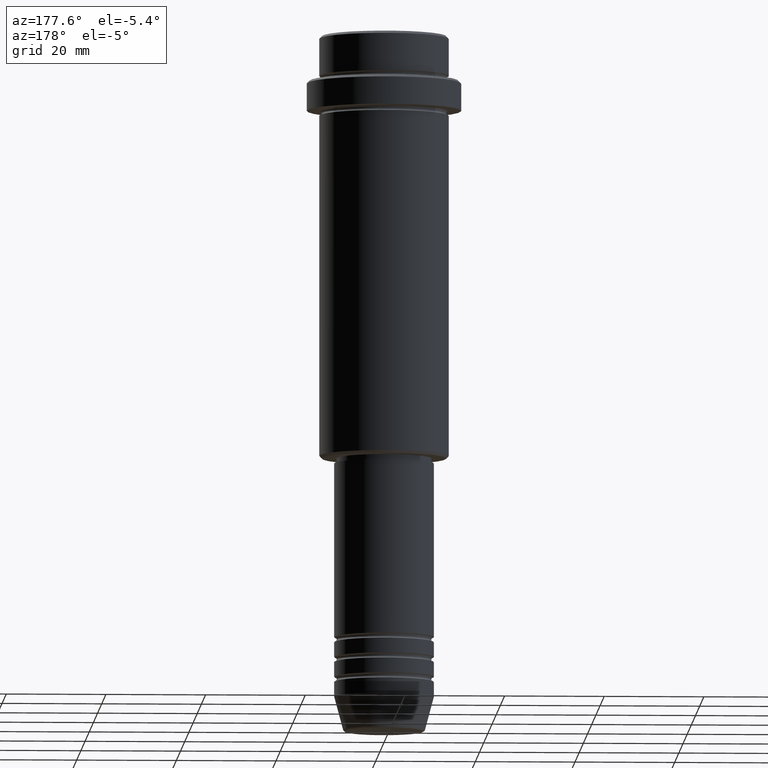
[diagram: clean part render]
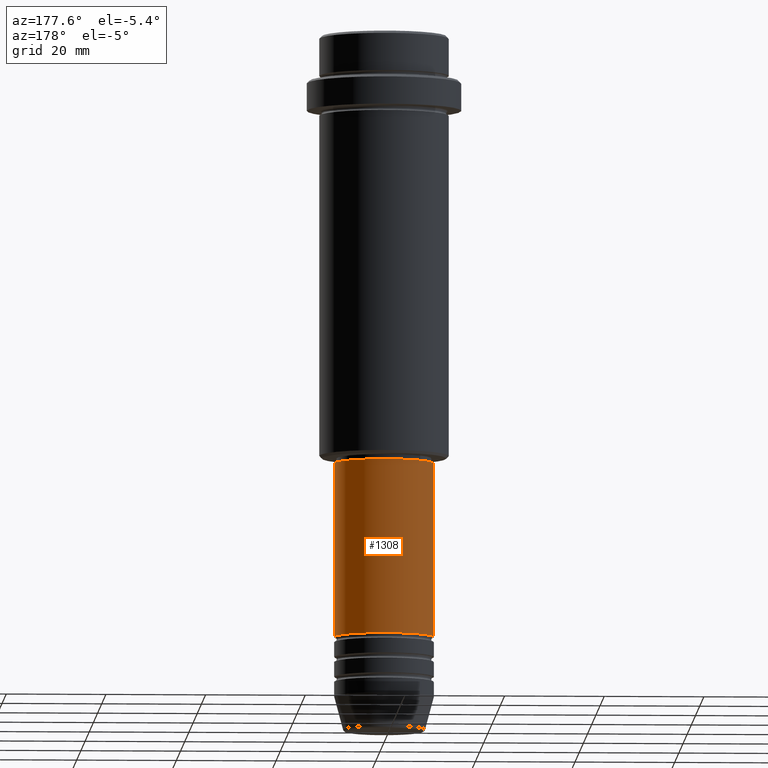
[diagram: same view with one face highlighted and labeled with its STEP entity id]
A machine part, auxiliary view. The second image highlights one B-rep face of the part: STEP entity #1308.
In plain terms, the highlighted cylindrical surface (partial cylindrical patch) has radius 10 mm, axis along (-0, -0, 1).
Its self-contained STEP definition (entity closure, byte-faithful):
#16 = CARTESIAN_POINT ( 'NONE',  ( 0.000000000000000000, 0.000000000000000000, -86.00000000000001421 ) ) ;
#23 = DIRECTION ( 'NONE',  ( 1.000000000000000000, 0.000000000000000000, 0.000000000000000000 ) ) ;
#49 = EDGE_CURVE ( 'NONE', #1002, #661, #646, .T. ) ;
#53 = CARTESIAN_POINT ( 'NONE',  ( 10.00000000000000000, 0.000000000000000000, -120.9999999999999005 ) ) ;
#70 = CARTESIAN_POINT ( 'NONE',  ( 10.00000000000000178, 0.000000000000000000, -86.00000000000001421 ) ) ;
#79 = LINE ( 'NONE', #181, #475 ) ;
#121 = AXIS2_PLACEMENT_3D ( 'NONE', #544, #789, #329 ) ;
#181 = CARTESIAN_POINT ( 'NONE',  ( -10.00000000000000178, 1.224646799147353454E-15, 0.000000000000000000 ) ) ;
#285 = DIRECTION ( 'NONE',  ( -0.000000000000000000, -0.000000000000000000, 1.000000000000000000 ) ) ;
#329 = DIRECTION ( 'NONE',  ( 1.000000000000000000, 0.000000000000000000, 0.000000000000000000 ) ) ;
#353 = EDGE_CURVE ( 'NONE', #661, #483, #971, .T. ) ;
#356 = CARTESIAN_POINT ( 'NONE',  ( 0.000000000000000000, 0.000000000000000000, 0.000000000000000000 ) ) ;
#405 = VERTEX_POINT ( 'NONE', #1031 ) ;
#452 = CYLINDRICAL_SURFACE ( 'NONE', #1234, 10.00000000000000178 ) ;
#459 = FACE_OUTER_BOUND ( 'NONE', #793, .T. ) ;
#462 = ORIENTED_EDGE ( 'NONE', *, *, #49, .F. ) ;
#475 = VECTOR ( 'NONE', #285, 1000.000000000000000 ) ;
#483 = VERTEX_POINT ( 'NONE', #1203 ) ;
#544 = CARTESIAN_POINT ( 'NONE',  ( 0.000000000000000000, 0.000000000000000000, -120.9999999999999005 ) ) ;
#595 = ORIENTED_EDGE ( 'NONE', *, *, #1104, .T. ) ;
#644 = EDGE_CURVE ( 'NONE', #1002, #405, #759, .T. ) ;
#646 = LINE ( 'NONE', #653, #679 ) ;
#653 = CARTESIAN_POINT ( 'NONE',  ( 10.00000000000000178, 0.000000000000000000, 0.000000000000000000 ) ) ;
#661 = VERTEX_POINT ( 'NONE', #70 ) ;
#678 = DIRECTION ( 'NONE',  ( -0.000000000000000000, -0.000000000000000000, 1.000000000000000000 ) ) ;
#679 = VECTOR ( 'NONE', #1200, 1000.000000000000000 ) ;
#686 = ORIENTED_EDGE ( 'NONE', *, *, #353, .F. ) ;
#759 = CIRCLE ( 'NONE', #121, 10.00000000000000000 ) ;
#789 = DIRECTION ( 'NONE',  ( -0.000000000000000000, -0.000000000000000000, 1.000000000000000000 ) ) ;
#793 = EDGE_LOOP ( 'NONE', ( #1187, #595, #686, #462 ) ) ;
#819 = AXIS2_PLACEMENT_3D ( 'NONE', #16, #1338, #23 ) ;
#915 = DIRECTION ( 'NONE',  ( 1.000000000000000000, 0.000000000000000000, 0.000000000000000000 ) ) ;
#971 = CIRCLE ( 'NONE', #819, 10.00000000000000178 ) ;
#1002 = VERTEX_POINT ( 'NONE', #53 ) ;
#1031 = CARTESIAN_POINT ( 'NONE',  ( -10.00000000000000000, 1.224646799147353256E-15, -120.9999999999999005 ) ) ;
#1104 = EDGE_CURVE ( 'NONE', #405, #483, #79, .T. ) ;
#1187 = ORIENTED_EDGE ( 'NONE', *, *, #644, .T. ) ;
#1200 = DIRECTION ( 'NONE',  ( -0.000000000000000000, -0.000000000000000000, 1.000000000000000000 ) ) ;
#1203 = CARTESIAN_POINT ( 'NONE',  ( -10.00000000000000178, 1.224646799147353454E-15, -86.00000000000001421 ) ) ;
#1234 = AXIS2_PLACEMENT_3D ( 'NONE', #356, #678, #915 ) ;
#1308 = ADVANCED_FACE ( 'NONE', ( #459 ), #452, .T. ) ;
#1338 = DIRECTION ( 'NONE',  ( -0.000000000000000000, -0.000000000000000000, 1.000000000000000000 ) ) ;